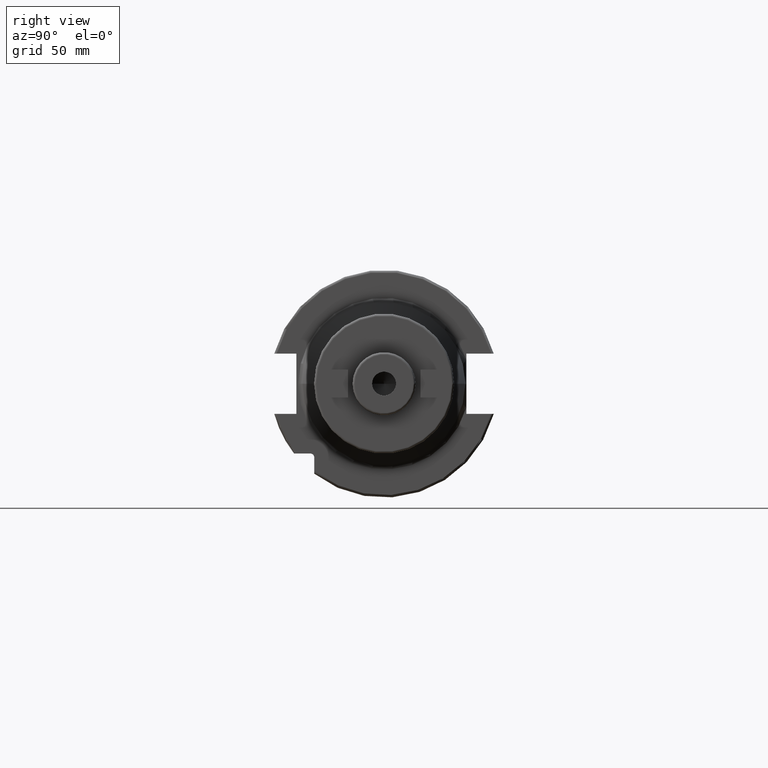
[diagram: clean part render]
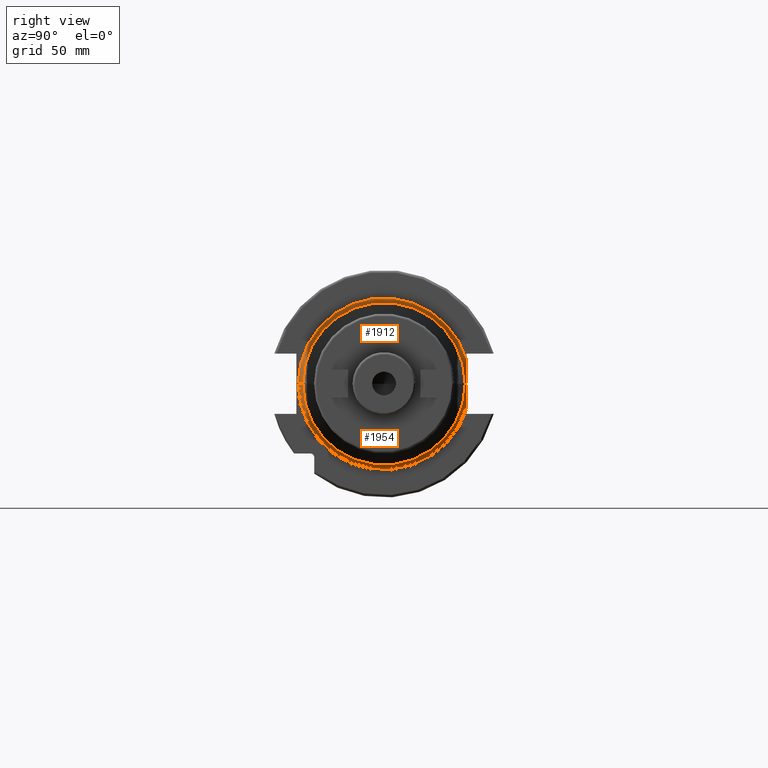
[diagram: same view with one multi-face feature highlighted, each face labeled with its STEP entity id]
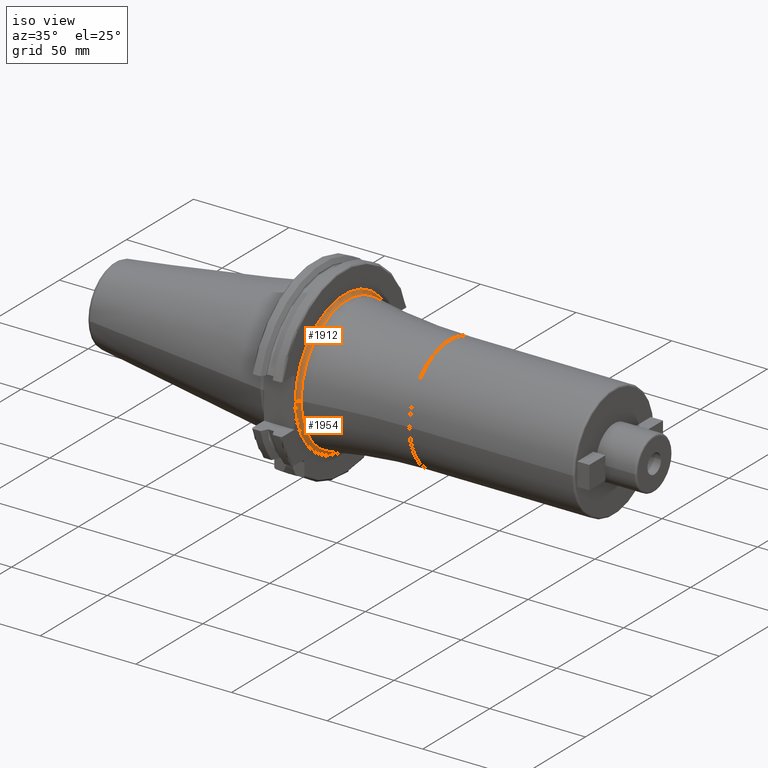
[diagram: same view with one multi-face feature highlighted, each face labeled with its STEP entity id]
A machine part, right view. The highlighted faces form ONE feature: a constant-radius fillet chain: 2 tangent blend faces with common blend radius 2 mm. The faces share edges in the B-rep.
A second angle (iso view) of the same feature is appended — it is thin or edge-on in the first view.
Their STEP definitions:
[1] entity #1912 (Torus):
#126=CARTESIAN_POINT('',(1.905E1,0.E0,0.E0));
#127=DIRECTION('',(1.E0,0.E0,0.E0));
#128=DIRECTION('',(0.E0,9.605205807398E-1,2.782089394236E-1));
#129=AXIS2_PLACEMENT_3D('',#126,#127,#128);
#172=CARTESIAN_POINT('',(1.967351253334E1,3.53E1,-6.583068044661E-5));
#173=CARTESIAN_POINT('',(1.967351376422E1,3.53E1,6.260849398925E-1));
#174=CARTESIAN_POINT('',(1.963642932571E1,3.529999985286E1,1.838669060439E0));
#175=CARTESIAN_POINT('',(1.952190555226E1,3.530000051499E1,3.439207013871E0));
#176=CARTESIAN_POINT('',(1.936808122911E1,3.529999808717E1,5.119656767418E0));
#177=CARTESIAN_POINT('',(1.920907310120E1,3.530000713632E1,6.832677662319E0));
#178=CARTESIAN_POINT('',(1.908354344641E1,3.529997336756E1,8.580467327587E0));
#179=CARTESIAN_POINT('',(1.905E1,3.530005738482E1,9.681995063207E0));
#180=CARTESIAN_POINT('',(1.905E1,3.530005738482E1,1.022436312268E1));
#182=CARTESIAN_POINT('',(2.105E1,3.675095908079E1,-6.853656215675E-5));
#183=DIRECTION('',(0.E0,1.864891797952E-6,9.999999999983E-1));
#184=DIRECTION('',(-6.882437333297E-1,-7.254795403942E-1,1.352940844465E-6));
#185=AXIS2_PLACEMENT_3D('',#182,#183,#184);
#187=CARTESIAN_POINT('',(2.069429530201E1,0.E0,0.E0));
#188=DIRECTION('',(1.E0,0.E0,0.E0));
#189=DIRECTION('',(0.E0,1.E0,0.E0));
#190=AXIS2_PLACEMENT_3D('',#187,#188,#189);
#207=CARTESIAN_POINT('',(2.105E1,-3.675095908085E1,7.716050021145E-14));
#208=DIRECTION('',(0.E0,0.E0,-1.E0));
#209=DIRECTION('',(-1.E0,2.486899575160E-14,0.E0));
#210=AXIS2_PLACEMENT_3D('',#207,#208,#209);
#1676=CARTESIAN_POINT('',(2.069429530201E1,3.478284471227E1,0.E0));
#1677=CARTESIAN_POINT('',(2.069429530201E1,-3.478284471227E1,0.E0));
#1678=VERTEX_POINT('',#1676);
#1679=VERTEX_POINT('',#1677);
#1680=CARTESIAN_POINT('',(1.905E1,3.530005255909E1,1.022444534868E1));
#1681=CARTESIAN_POINT('',(1.905E1,-3.675095908085E1,-2.895461648222E-13));
#1682=VERTEX_POINT('',#1680);
#1683=VERTEX_POINT('',#1681);
#1686=VERTEX_POINT('',#172);
#1897=CARTESIAN_POINT('',(2.105E1,0.E0,0.E0));
#1898=DIRECTION('',(1.E0,0.E0,0.E0));
#1899=DIRECTION('',(0.E0,1.485959642861E-3,-9.999988959614E-1));
#1900=AXIS2_PLACEMENT_3D('',#1897,#1898,#1899);
#1901=TOROIDAL_SURFACE('',#1900,3.675095908085E1,2.E0);
#1903=ORIENTED_EDGE('',*,*,#1902,.T.);
#1905=ORIENTED_EDGE('',*,*,#1904,.F.);
#1906=ORIENTED_EDGE('',*,*,#1866,.F.);
#1907=ORIENTED_EDGE('',*,*,#1843,.F.);
#1909=ORIENTED_EDGE('',*,*,#1908,.T.);
#1910=EDGE_LOOP('',(#1903,#1905,#1906,#1907,#1909));
#1911=FACE_OUTER_BOUND('',#1910,.F.);
#1912=ADVANCED_FACE('',(#1911),#1901,.F.);
#130=CIRCLE('',#129,3.675095908085E1);
#181=B_SPLINE_CURVE_WITH_KNOTS('',3,(#172,#173,#174,#175,#176,#177,#178,#179,
#180),.UNSPECIFIED.,.F.,.F.,(4,1,1,1,1,1,4),(0.E0,1.666666666667E-1,
3.333333333333E-1,5.E-1,6.666666666667E-1,8.333333333333E-1,1.E0),
.UNSPECIFIED.);
#186=CIRCLE('',#185,2.E0);
#191=CIRCLE('',#190,3.478284471227E1);
#211=CIRCLE('',#210,2.E0);
#1843=EDGE_CURVE('',#1686,#1682,#181,.T.);
#1866=EDGE_CURVE('',#1682,#1683,#130,.T.);
#1902=EDGE_CURVE('',#1678,#1679,#191,.T.);
#1904=EDGE_CURVE('',#1683,#1679,#211,.T.);
#1908=EDGE_CURVE('',#1686,#1678,#186,.T.);
[2] entity #1954 (Torus):
#131=CARTESIAN_POINT('',(1.905E1,0.E0,0.E0));
#132=DIRECTION('',(1.E0,0.E0,0.E0));
#133=DIRECTION('',(0.E0,-1.E0,0.E0));
#134=AXIS2_PLACEMENT_3D('',#131,#132,#133);
#172=CARTESIAN_POINT('',(1.967351253334E1,3.53E1,-6.583068044661E-5));
#182=CARTESIAN_POINT('',(2.105E1,3.675095908079E1,-6.853656215675E-5));
#183=DIRECTION('',(0.E0,1.864891797952E-6,9.999999999983E-1));
#184=DIRECTION('',(-6.882437333297E-1,-7.254795403942E-1,1.352940844465E-6));
#185=AXIS2_PLACEMENT_3D('',#182,#183,#184);
#192=CARTESIAN_POINT('',(2.069429530201E1,0.E0,0.E0));
#193=DIRECTION('',(1.E0,0.E0,0.E0));
#194=DIRECTION('',(0.E0,-1.E0,0.E0));
#195=AXIS2_PLACEMENT_3D('',#192,#193,#194);
#207=CARTESIAN_POINT('',(2.105E1,-3.675095908085E1,7.716050021145E-14));
#208=DIRECTION('',(0.E0,0.E0,-1.E0));
#209=DIRECTION('',(-1.E0,2.486899575160E-14,0.E0));
#210=AXIS2_PLACEMENT_3D('',#207,#208,#209);
#212=CARTESIAN_POINT('',(1.905E1,3.530005730660E1,-1.022444218237E1));
#213=CARTESIAN_POINT('',(1.905E1,3.530005730660E1,-9.682063778477E0));
#214=CARTESIAN_POINT('',(1.908354494471E1,3.529997340386E1,-8.580379190314E0));
#215=CARTESIAN_POINT('',(1.920908664628E1,3.530000712659E1,-6.832518289665E0));
#216=CARTESIAN_POINT('',(1.936811503332E1,3.529999808978E1,-5.119295766851E0));
#217=CARTESIAN_POINT('',(1.952193588305E1,3.530000051429E1,-3.438869757578E0));
#218=CARTESIAN_POINT('',(1.963645570785E1,3.529999985306E1,-1.838147777049E0));
#219=CARTESIAN_POINT('',(1.967351130299E1,3.53E1,-6.259500135487E-1));
#220=CARTESIAN_POINT('',(1.967351253334E1,3.53E1,-6.583068044661E-5));
#1676=CARTESIAN_POINT('',(2.069429530201E1,3.478284471227E1,0.E0));
#1677=CARTESIAN_POINT('',(2.069429530201E1,-3.478284471227E1,0.E0));
#1678=VERTEX_POINT('',#1676);
#1679=VERTEX_POINT('',#1677);
#1681=CARTESIAN_POINT('',(1.905E1,-3.675095908085E1,-2.895461648222E-13));
#1683=VERTEX_POINT('',#1681);
#1684=CARTESIAN_POINT('',(1.905E1,3.529998939467E1,-1.022466342225E1));
#1685=VERTEX_POINT('',#1684);
#1686=VERTEX_POINT('',#172);
#1942=CARTESIAN_POINT('',(2.105E1,0.E0,0.E0));
#1943=DIRECTION('',(1.E0,0.E0,0.E0));
#1944=DIRECTION('',(0.E0,-9.999879124819E-1,4.916796726543E-3));
#1945=AXIS2_PLACEMENT_3D('',#1942,#1943,#1944);
#1946=TOROIDAL_SURFACE('',#1945,3.675095908085E1,2.E0);
#1947=ORIENTED_EDGE('',*,*,#1868,.F.);
#1948=ORIENTED_EDGE('',*,*,#1904,.T.);
#1949=ORIENTED_EDGE('',*,*,#1933,.T.);
#1950=ORIENTED_EDGE('',*,*,#1908,.F.);
#1951=ORIENTED_EDGE('',*,*,#1841,.F.);
#1952=EDGE_LOOP('',(#1947,#1948,#1949,#1950,#1951));
#1953=FACE_OUTER_BOUND('',#1952,.F.);
#1954=ADVANCED_FACE('',(#1953),#1946,.F.);
#135=CIRCLE('',#134,3.675095908085E1);
#186=CIRCLE('',#185,2.E0);
#196=CIRCLE('',#195,3.478284471227E1);
#211=CIRCLE('',#210,2.E0);
#221=B_SPLINE_CURVE_WITH_KNOTS('',3,(#212,#213,#214,#215,#216,#217,#218,#219,
#220),.UNSPECIFIED.,.F.,.F.,(4,1,1,1,1,1,4),(0.E0,1.666666666667E-1,
3.333333333333E-1,5.E-1,6.666666666667E-1,8.333333333333E-1,1.E0),
.UNSPECIFIED.);
#1841=EDGE_CURVE('',#1685,#1686,#221,.T.);
#1868=EDGE_CURVE('',#1683,#1685,#135,.T.);
#1904=EDGE_CURVE('',#1683,#1679,#211,.T.);
#1908=EDGE_CURVE('',#1686,#1678,#186,.T.);
#1933=EDGE_CURVE('',#1679,#1678,#196,.T.);